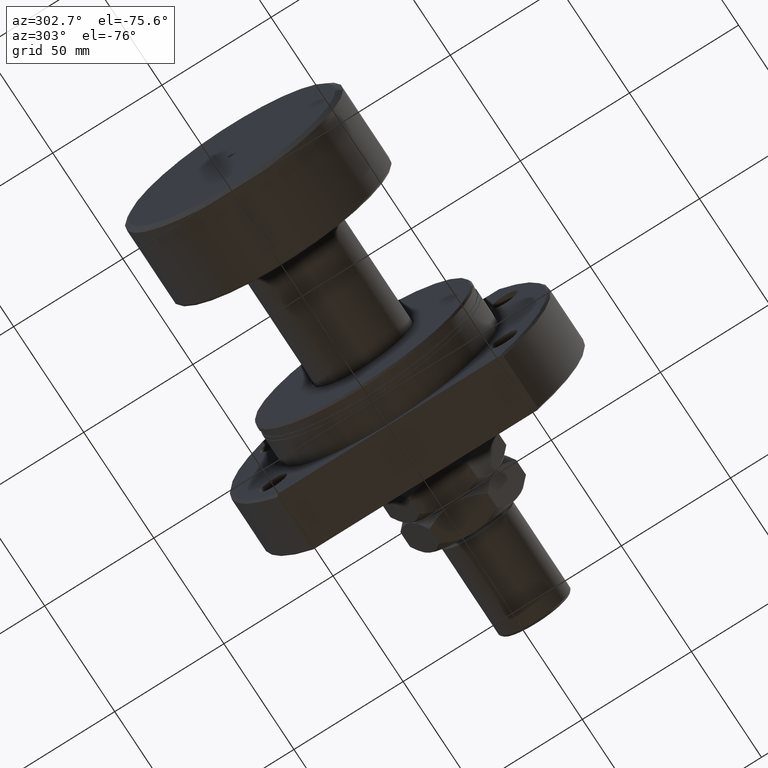
[diagram: clean part render]
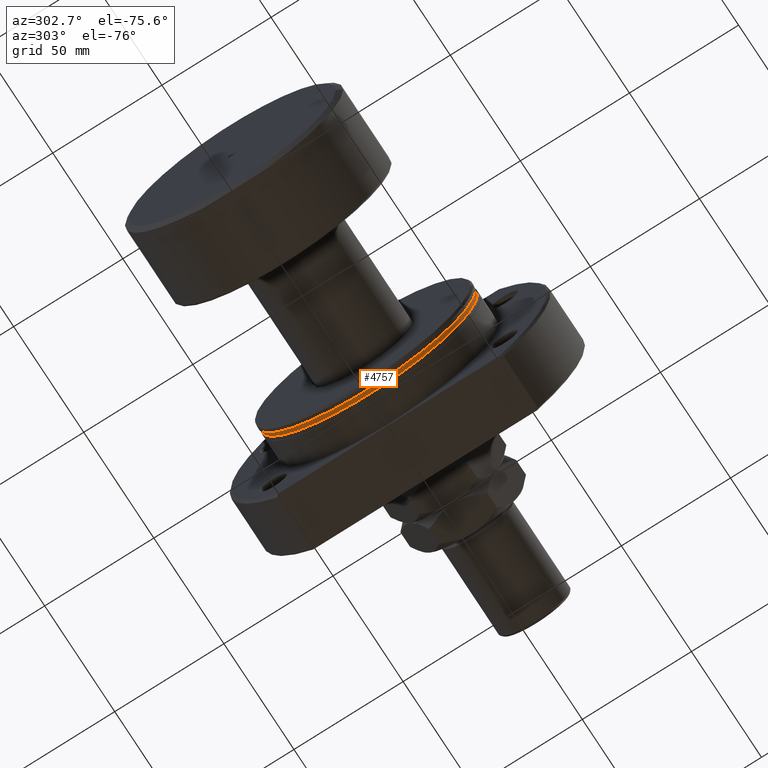
[diagram: same view with one face highlighted and labeled with its STEP entity id]
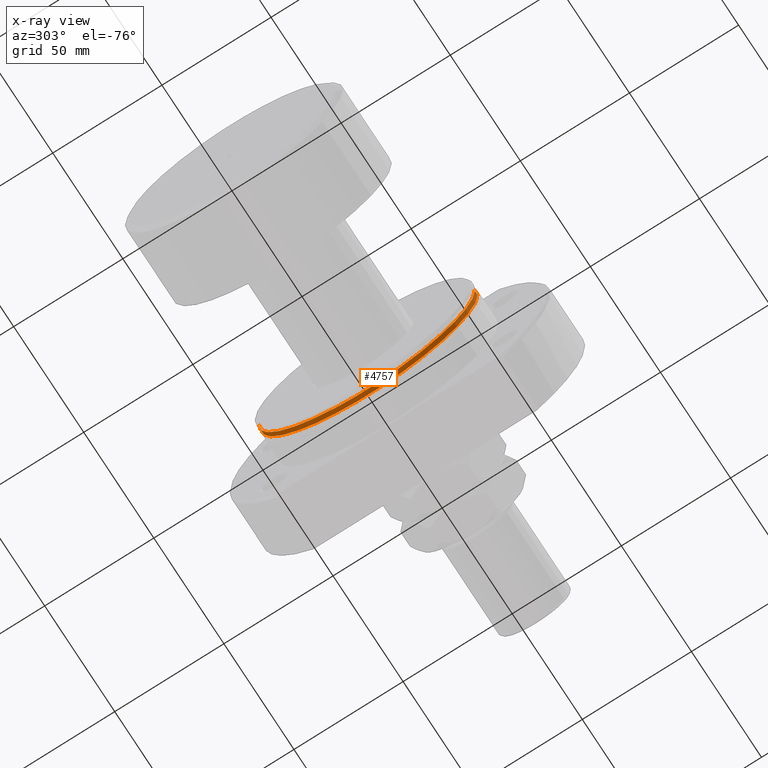
[diagram: x-ray of the same camera — body ghosted, the highlighted face saturated]
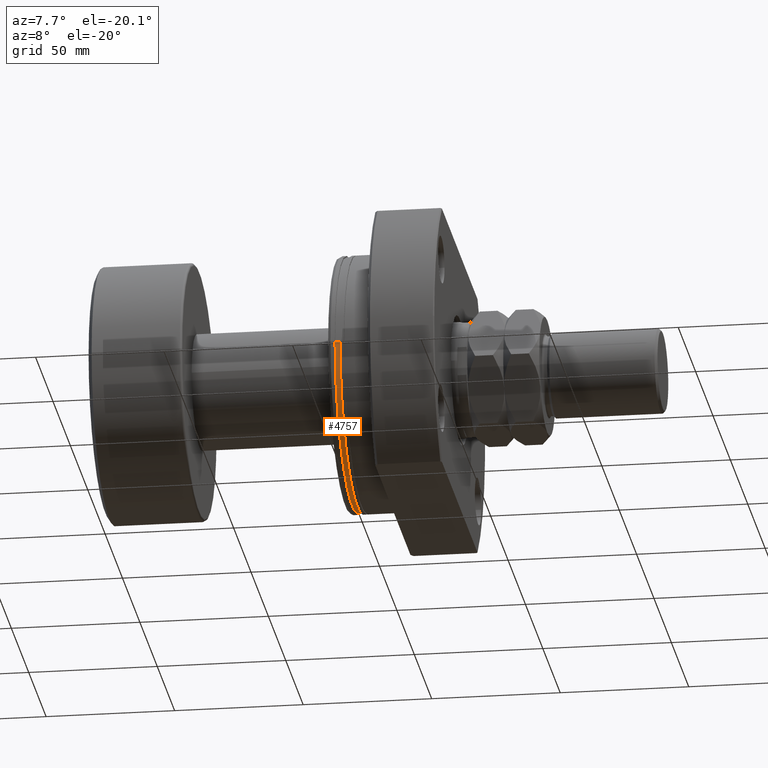
[diagram: same view with one face highlighted and labeled with its STEP entity id]
A machine part, auxiliary view. The second image highlights one B-rep face of the part: STEP entity #4757.
The next image is the same camera in x-ray: the body ghosted, the highlighted face saturated — about 0% of this face is hidden behind the body in this view.
A second angle (auxiliary view) of the same face is appended — the face is thin or edge-on in the first view.
In plain terms, the highlighted cylindrical surface (partial cylindrical patch) has radius 49.5 mm, axis along (1, 0, 0).
Its self-contained STEP definition (entity closure, byte-faithful):
#28 = ORIENTED_EDGE ( 'NONE', *, *, #871, .T. ) ;
#62 = CIRCLE ( 'NONE', #2891, 49.50000000000000000 ) ;
#473 = DIRECTION ( 'NONE',  ( 1.000000000000000000, 5.504030557965630938E-17, -0.000000000000000000 ) ) ;
#487 = ORIENTED_EDGE ( 'NONE', *, *, #1932, .T. ) ;
#576 = DIRECTION ( 'NONE',  ( 0.000000000000000000, 1.000000000000000000, 0.000000000000000000 ) ) ;
#847 = VERTEX_POINT ( 'NONE', #1895 ) ;
#871 = EDGE_CURVE ( 'NONE', #4587, #2226, #62, .T. ) ;
#884 = ORIENTED_EDGE ( 'NONE', *, *, #2468, .F. ) ;
#926 = CARTESIAN_POINT ( 'NONE',  ( 2.699999999999790123, 49.50000000000000000, 0.000000000000000000 ) ) ;
#938 = FACE_OUTER_BOUND ( 'NONE', #1446, .T. ) ;
#1150 = DIRECTION ( 'NONE',  ( 1.000000000000000000, 5.504030557965630938E-17, -0.000000000000000000 ) ) ;
#1191 = LINE ( 'NONE', #3178, #1243 ) ;
#1243 = VECTOR ( 'NONE', #2815, 1000.000000000000000 ) ;
#1425 = CARTESIAN_POINT ( 'NONE',  ( 4.699999999998549782, 49.49999999999999289, 0.000000000000000000 ) ) ;
#1446 = EDGE_LOOP ( 'NONE', ( #4496, #28, #487, #884 ) ) ;
#1487 = CARTESIAN_POINT ( 'NONE',  ( 2.699999999999792788, 1.486088250650606153E-16, 0.000000000000000000 ) ) ;
#1525 = CARTESIAN_POINT ( 'NONE',  ( 2.699999999999795453, -49.50000000000000000, 6.062001655779398511E-15 ) ) ;
#1604 = DIRECTION ( 'NONE',  ( -5.256737805990325406E-17, 1.000000000000000000, 0.000000000000000000 ) ) ;
#1694 = DIRECTION ( 'NONE',  ( 1.000000000000000000, 5.504030557965630938E-17, -0.000000000000000000 ) ) ;
#1895 = CARTESIAN_POINT ( 'NONE',  ( 4.699999999998555111, -49.49999999999999289, 6.062001655779397722E-15 ) ) ;
#1932 = EDGE_CURVE ( 'NONE', #2226, #2207, #4860, .T. ) ;
#1990 = DIRECTION ( 'NONE',  ( -5.256737805990324790E-17, 1.000000000000000000, 0.000000000000000000 ) ) ;
#2029 = AXIS2_PLACEMENT_3D ( 'NONE', #3948, #1694, #576 ) ;
#2102 = VECTOR ( 'NONE', #1150, 1000.000000000000000 ) ;
#2207 = VERTEX_POINT ( 'NONE', #1425 ) ;
#2226 = VERTEX_POINT ( 'NONE', #926 ) ;
#2438 = CYLINDRICAL_SURFACE ( 'NONE', #2029, 49.50000000000000000 ) ;
#2468 = EDGE_CURVE ( 'NONE', #847, #2207, #2972, .T. ) ;
#2657 = CARTESIAN_POINT ( 'NONE',  ( 44.50000000000000000, 49.50000000000000000, 0.000000000000000000 ) ) ;
#2815 = DIRECTION ( 'NONE',  ( 1.000000000000000000, 5.504030557965630938E-17, -0.000000000000000000 ) ) ;
#2867 = EDGE_CURVE ( 'NONE', #4587, #847, #1191, .T. ) ;
#2891 = AXIS2_PLACEMENT_3D ( 'NONE', #1487, #473, #1990 ) ;
#2972 = CIRCLE ( 'NONE', #4244, 49.49999999999999289 ) ;
#3049 = DIRECTION ( 'NONE',  ( 1.000000000000000000, 5.504030557965630938E-17, -0.000000000000000000 ) ) ;
#3075 = CARTESIAN_POINT ( 'NONE',  ( 4.699999999998552447, 2.586894362243048990E-16, 0.000000000000000000 ) ) ;
#3178 = CARTESIAN_POINT ( 'NONE',  ( 44.50000000000000000, -49.50000000000000000, 6.062001655779398511E-15 ) ) ;
#3948 = CARTESIAN_POINT ( 'NONE',  ( 44.50000000000000000, 2.449293598294705724E-15, 0.000000000000000000 ) ) ;
#4244 = AXIS2_PLACEMENT_3D ( 'NONE', #3075, #3049, #1604 ) ;
#4496 = ORIENTED_EDGE ( 'NONE', *, *, #2867, .F. ) ;
#4587 = VERTEX_POINT ( 'NONE', #1525 ) ;
#4757 = ADVANCED_FACE ( 'NONE', ( #938 ), #2438, .T. ) ;
#4860 = LINE ( 'NONE', #2657, #2102 ) ;